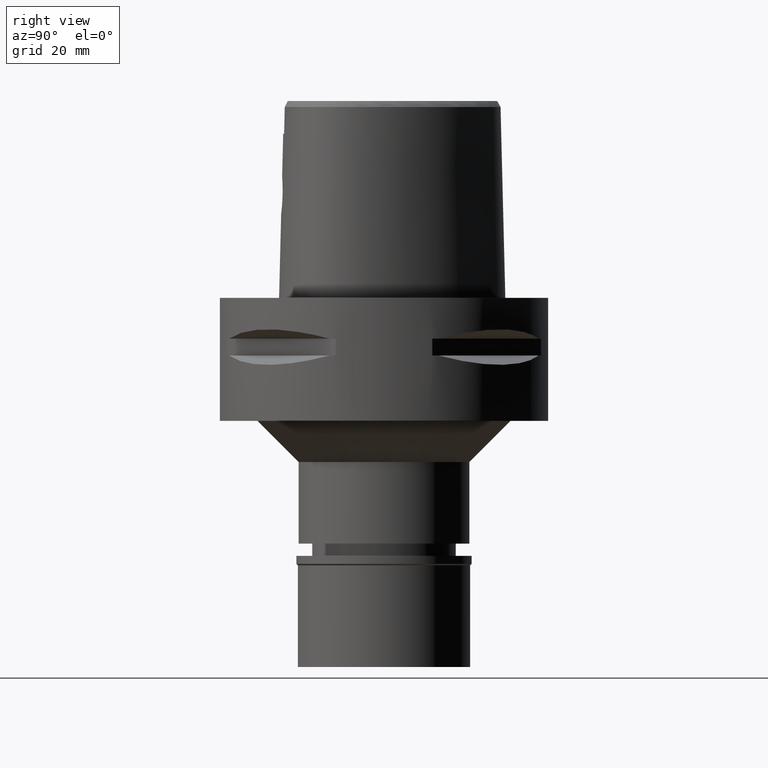
[diagram: clean part render]
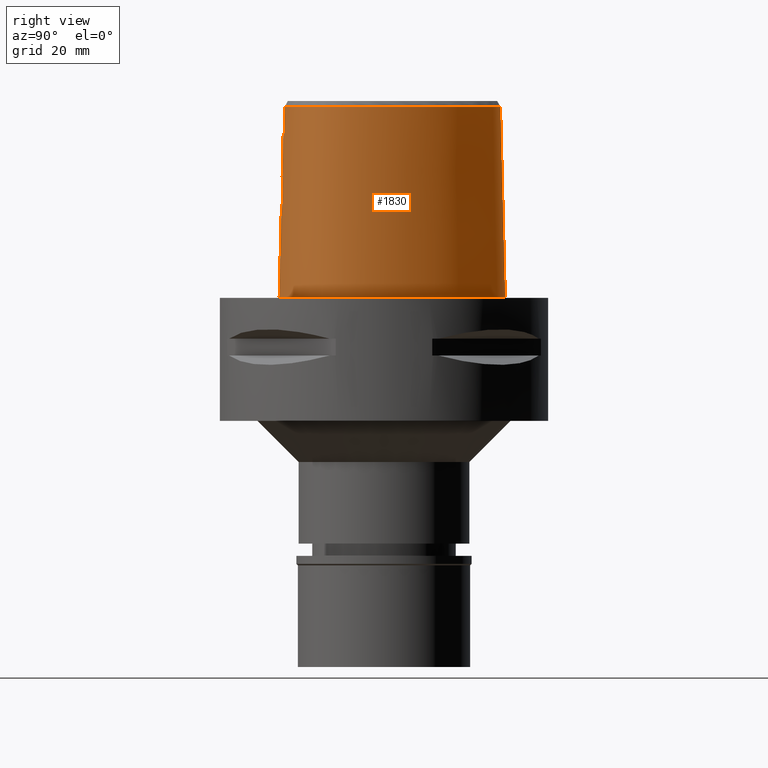
[diagram: same view with one face highlighted and labeled with its STEP entity id]
A machine part, right view. The second image highlights one B-rep face of the part: STEP entity #1830.
In plain terms, the highlighted face is a freeform B-spline surface patch.
Its self-contained STEP definition (entity closure, byte-faithful):
#8 = CARTESIAN_POINT ( 'NONE',  ( 26.53043812451588579, -3.252830914801576156, 46.52070254359986734 ) ) ;
#23 = DIRECTION ( 'NONE',  ( 1.191990173969029987E-12, 0.02499051293969065113, -0.9996876883622259902 ) ) ;
#48 = CARTESIAN_POINT ( 'NONE',  ( -0.5642169907412000196, -25.19264550061999941, 15.19677550932000010 ) ) ;
#56 = CARTESIAN_POINT ( 'NONE',  ( 4.354908547475000121E-11, 29.57499999998999840, 1.090979158864999866E-13 ) ) ;
#72 = CARTESIAN_POINT ( 'NONE',  ( 26.00056127858999844, -13.24168024687999967, 15.19677550932000010 ) ) ;
#103 = CARTESIAN_POINT ( 'NONE',  ( 17.98126102682999772, -20.40884504433000401, 47.45115618216000541 ) ) ;
#125 = B_SPLINE_CURVE_WITH_KNOTS ( 'NONE', 3,
 ( #2590, #4947, #1445, #3048 ),
 .UNSPECIFIED., .F., .F.,
 ( 4, 4 ),
 ( 0.0000000000000000000, 1.000000000000000000 ),
 .UNSPECIFIED. ) ;
#131 = CARTESIAN_POINT ( 'NONE',  ( 23.15870194799999737, -17.49879684224999821, 15.19677550932000010 ) ) ;
#156 = CARTESIAN_POINT ( 'NONE',  ( 20.94550167350000081, -18.97246371473000437, 31.32396584574000187 ) ) ;
#208 = CARTESIAN_POINT ( 'NONE',  ( 2.979937687032000238, 28.57037827401999763, 31.32396584574000187 ) ) ;
#213 = CARTESIAN_POINT ( 'NONE',  ( 3.180359783745103197, -24.92613363770007595, 21.74608895217514259 ) ) ;
#230 = CARTESIAN_POINT ( 'NONE',  ( -0.5537150798214999226, 28.37988128597999804, 47.45115618216000541 ) ) ;
#233 = CARTESIAN_POINT ( 'NONE',  ( 1.483723097888439924, -25.03485232889443068, 20.69751684277657233 ) ) ;
#240 = CARTESIAN_POINT ( 'NONE',  ( 2.760678900605143760, 28.19254769430317253, 46.52071606750154587 ) ) ;
#255 = CARTESIAN_POINT ( 'NONE',  ( 22.00846680665000221, 12.70659189653999910, 15.19677550932000010 ) ) ;
#261 = CARTESIAN_POINT ( 'NONE',  ( 4.337077477085154342, -24.71860659089776391, 26.37767366826650672 ) ) ;
#280 = CARTESIAN_POINT ( 'NONE',  ( 17.77103259307000016, 19.53703865006000129, -0.9304148271013000793 ) ) ;
#284 = CARTESIAN_POINT ( 'NONE',  ( 1.704163054239501873, -25.02540437729528477, 20.78117410888037497 ) ) ;
#302 = B_SPLINE_CURVE_WITH_KNOTS ( 'NONE', 3,
 ( #2944, #4510, #240, #2971, #2201, #2320, #795, #2681, #4780, #3976, #8, #1118, #4208, #746, #1689, #3873, #2038, #3623, #1277, #4237, #1894, #4264, #2271, #2299, #3850, #769 ),
 .UNSPECIFIED., .F., .F.,
 ( 4, 2, 2, 2, 2, 2, 2, 2, 2, 2, 2, 2, 4 ),
 ( 0.0000000000000000000, 0.06249999999999997224, 0.1249999999999999722, 0.2500000000000000000, 0.5000000000000000000, 0.5625000000000000000, 0.6249999999999998890, 0.6874999999999998890, 0.7187500000000000000, 0.7500000000000001110, 0.8125000000000001110, 0.8750000000000000000, 1.000000000000000000 ),
 .UNSPECIFIED. ) ;
#310 = CARTESIAN_POINT ( 'NONE',  ( 4.172398775497891066, -24.81348664747051203, 23.18477895935432187 ) ) ;
#337 = CARTESIAN_POINT ( 'NONE',  ( 2.653628212346459403, -24.78409939537365858, 28.69623435022848312 ) ) ;
#339 = CARTESIAN_POINT ( 'NONE',  ( 4.472216720976999405, -24.20009030094000124, 46.52069014668999358 ) ) ;
#346 = VERTEX_POINT ( 'NONE', #681 ) ;
#360 = CARTESIAN_POINT ( 'NONE',  ( 1.883305297005975154, -24.80958828430724594, 29.14211520707456060 ) ) ;
#364 = CARTESIAN_POINT ( 'NONE',  ( 1.372734075386999954E-14, -24.83629963747999980, 29.55000000000000071 ) ) ;
#371 = CARTESIAN_POINT ( 'NONE',  ( 22.33885463294038232, 12.89734373572265724, 1.137765652905239205E-06 ) ) ;
#381 = CARTESIAN_POINT ( 'NONE',  ( 3.373359712600709770, -24.75487047605681212, 28.05365220515482605 ) ) ;
#413 = CARTESIAN_POINT ( 'NONE',  ( 1.986969619755051930, -24.80670454267324132, 29.09445024140585190 ) ) ;
#439 = CARTESIAN_POINT ( 'NONE',  ( 3.329382130121248728, -24.75674668230317010, 28.10179055163160200 ) ) ;
#442 = CARTESIAN_POINT ( 'NONE',  ( 4.602925666818999950, -24.35121855888000297, 40.00000005214999987 ) ) ;
#465 = CARTESIAN_POINT ( 'NONE',  ( -0.5548491667767999624, -24.38637812865000143, 47.45115618216000541 ) ) ;
#490 = CARTESIAN_POINT ( 'NONE',  ( 11.64093420266000045, -23.76831829970000243, 15.19677550932000010 ) ) ;
#520 = CARTESIAN_POINT ( 'NONE',  ( 2.393561154781999711, -25.62160366746000051, -0.9304148271013000793 ) ) ;
#544 = CARTESIAN_POINT ( 'NONE',  ( 27.70696776775000103, -8.754869101938998810, -0.9304148271013000793 ) ) ;
#558 = CARTESIAN_POINT ( 'NONE',  ( 4.354908547475000121E-11, 29.57499999998999840, 1.090979158864999866E-13 ) ) ;
#570 = CARTESIAN_POINT ( 'NONE',  ( 2.334473150851999801, -24.41160952519999938, 47.45115618216000541 ) ) ;
#597 = CARTESIAN_POINT ( 'NONE',  ( 5.801139259362000367, 27.25218118271000023, 47.45115618216000541 ) ) ;
#602 = CARTESIAN_POINT ( 'NONE',  ( 3.205701519811125610, -24.92381821717547297, 21.77105828208809513 ) ) ;
#619 = CARTESIAN_POINT ( 'NONE',  ( -0.5886350937626000368, 29.18561913533000052, 15.19677550932000010 ) ) ;
#623 = CARTESIAN_POINT ( 'NONE',  ( 4.325577297008612376, -24.79069917425946912, 23.55238152012436004 ) ) ;
#631 = VERTEX_POINT ( 'NONE', #3331 ) ;
#641 = CARTESIAN_POINT ( 'NONE',  ( 2.892852006350000060, 28.17405693985000070, 47.45115618216000541 ) ) ;
#644 = CARTESIAN_POINT ( 'NONE',  ( 3.937353243876662301, -24.84519667286186007, 22.71482954515074582 ) ) ;
#669 = CARTESIAN_POINT ( 'NONE',  ( 24.48145197323999867, 6.531540392824999763, 31.32396584574000187 ) ) ;
#673 = CARTESIAN_POINT ( 'NONE',  ( 2.955264688608201684, -24.94567926532401358, 21.53931554468380583 ) ) ;
#681 = CARTESIAN_POINT ( 'NONE',  ( -1.451045074373000022E-08, -24.57504746727000011, 40.00000005214000254 ) ) ;
#695 = CARTESIAN_POINT ( 'NONE',  ( 3.100243586364318737, -24.93331626314396487, 21.66917441973966874 ) ) ;
#715 = CARTESIAN_POINT ( 'NONE',  ( 1.813541865601553615, -24.81148519056511503, 29.17313109452835107 ) ) ;
#721 = CARTESIAN_POINT ( 'NONE',  ( -4.851912750261540134E-09, -24.66214466420160178, 36.51666702990944913 ) ) ;
#746 = CARTESIAN_POINT ( 'NONE',  ( 26.04423705948806500, -10.88022456237800029, 46.52069972612036253 ) ) ;
#769 = CARTESIAN_POINT ( 'NONE',  ( 4.472216720976999405, -24.20009030094000124, 46.52069014668999358 ) ) ;
#795 = CARTESIAN_POINT ( 'NONE',  ( 13.63304938780060205, 22.11238814013741205, 46.52071155953431258 ) ) ;
#802 = CARTESIAN_POINT ( 'NONE',  ( 27.68378751008365768, -8.751933590160039245, 1.137765652905239205E-06 ) ) ;
#818 = CARTESIAN_POINT ( 'NONE',  ( 3.512978482356083010, -24.74890643940174328, 27.89278862330737851 ) ) ;
#844 = CARTESIAN_POINT ( 'NONE',  ( 21.19046230565000144, -19.29498355652999564, 15.19677550932000010 ) ) ;
#853 = CARTESIAN_POINT ( 'NONE',  ( 26.77222811516928047, 1.900468742689392920, 1.137765652905239205E-06 ) ) ;
#866 = CARTESIAN_POINT ( 'NONE',  ( -0.8462047034635000742, -25.18772786762999871, 15.19677550932000010 ) ) ;
#891 = CARTESIAN_POINT ( 'NONE',  ( 25.26074752890999875, -12.91722033719999807, 47.45115618216000541 ) ) ;
#892 = CARTESIAN_POINT ( 'NONE',  ( -1.451045074373000022E-08, -24.57504746727000011, 40.00000005214000254 ) ) ;
#908 = CARTESIAN_POINT ( 'NONE',  ( 4.472216720976999405, -24.20009030094000124, 46.52069014668999358 ) ) ;
#920 = CARTESIAN_POINT ( 'NONE',  ( 25.63065440375000037, -13.07945029204000065, 31.32396584574000187 ) ) ;
#944 = CARTESIAN_POINT ( 'NONE',  ( 27.47379237263000107, -5.347524340481999872, 15.19677550932000010 ) ) ;
#965 = CARTESIAN_POINT ( 'NONE',  ( 16.83227236161000206, 18.76477884674999785, 47.45115618216000541 ) ) ;
#966 = VERTEX_POINT ( 'NONE', #3367 ) ;
#971 = CARTESIAN_POINT ( 'NONE',  ( 3.695416430653771567, -24.87420445000563163, 22.34444809527614595 ) ) ;
#994 = CARTESIAN_POINT ( 'NONE',  ( 27.16099284806999847, -1.823107513524999890, 15.19677550932000010 ) ) ;
#999 = CARTESIAN_POINT ( 'NONE',  ( 4.208386412724382630, -24.72133790640165785, 26.72975093107536892 ) ) ;
#1021 = CARTESIAN_POINT ( 'NONE',  ( 4.220110851308563227, -24.72101730040709811, 26.70095761995017369 ) ) ;
#1039 = CARTESIAN_POINT ( 'NONE',  ( 17.14519243876999965, 19.02219878118999929, 31.32396584574000187 ) ) ;
#1040 = ORIENTED_EDGE ( 'NONE', *, *, #1243, .T. ) ;
#1043 = CARTESIAN_POINT ( 'NONE',  ( 4.402195190949106163, -24.71810392633513231, 26.16020714300568528 ) ) ;
#1071 = CARTESIAN_POINT ( 'NONE',  ( 4.141553595740764315, -24.81790787904087381, 23.11546483668099583 ) ) ;
#1118 = CARTESIAN_POINT ( 'NONE',  ( 26.66096789089047192, -6.450661550929248200, 46.52070141660809810 ) ) ;
#1141 = CARTESIAN_POINT ( 'NONE',  ( 1.153626000806933671, -24.82864766317861083, 29.44729853102899853 ) ) ;
#1156 = CARTESIAN_POINT ( 'NONE',  ( 9.304563391730813038, 26.79191403815369199, 1.137765652905239205E-06 ) ) ;
#1174 = CARTESIAN_POINT ( 'NONE',  ( -1.192047609672000055E-11, 28.41206021534999593, 46.52071719450999154 ) ) ;
#1193 = CARTESIAN_POINT ( 'NONE',  ( 2.284825071824842624, -24.79755434855802676, 28.93755567620546998 ) ) ;
#1224 = CARTESIAN_POINT ( 'NONE',  ( 14.86558271013000088, -21.85772751250000212, 47.45115618216000541 ) ) ;
#1235 = CARTESIAN_POINT ( 'NONE',  ( 27.85475986892180700, -5.337968750715377908, 1.137765652905239205E-06 ) ) ;
#1243 = EDGE_CURVE ( 'NONE', #966, #4379, #4207, .T. ) ;
#1253 = CARTESIAN_POINT ( 'NONE',  ( 21.43542293779999852, -19.61750339832000023, -0.9304148271013000793 ) ) ;
#1276 = CARTESIAN_POINT ( 'NONE',  ( 24.14246341867999845, -15.65707268299999733, 31.32396584574000187 ) ) ;
#1277 = CARTESIAN_POINT ( 'NONE',  ( 23.08984995679907826, -16.35075897049664917, 46.52069719038880891 ) ) ;
#1302 = CARTESIAN_POINT ( 'NONE',  ( -0.8321552545604999906, -24.38153452354000095, 47.45115618216000541 ) ) ;
#1328 = EDGE_LOOP ( 'NONE', ( #4266, #3261, #1953, #3746, #1758, #3859, #1040, #2323 ) ) ;
#1334 = CARTESIAN_POINT ( 'NONE',  ( 27.87808443977999673, -5.337383713848000255, -0.9304148271013000793 ) ) ;
#1356 = CARTESIAN_POINT ( 'NONE',  ( 26.01411798471999859, 1.699187884020000094, 31.32396584574000187 ) ) ;
#1360 = CARTESIAN_POINT ( 'NONE',  ( 1.157035249422594614, -25.04636291852922980, 20.59695966232704833 ) ) ;
#1385 = CARTESIAN_POINT ( 'NONE',  ( 4.230858595537497102, -24.72073100376794841, 26.67421065539090108 ) ) ;
#1412 = CARTESIAN_POINT ( 'NONE',  ( 4.437987378314520726, -24.71842636459932052, 26.01433587876356412 ) ) ;
#1429 = CARTESIAN_POINT ( 'NONE',  ( 17.45811251591999991, 19.27961871562000340, 15.19677550932000010 ) ) ;
#1434 = CARTESIAN_POINT ( 'NONE',  ( 1.717599865388684810, -25.02478947459729497, 20.78664336873092466 ) ) ;
#1445 = CARTESIAN_POINT ( 'NONE',  ( 1.541632268877130230, -24.57506718866674689, 40.00000010051920896 ) ) ;
#1452 = CARTESIAN_POINT ( 'NONE',  ( -0.8562942035482000724, 28.76413503436000241, 31.32396584574000187 ) ) ;
#1456 = CARTESIAN_POINT ( 'NONE',  ( 1.672780685870661532, -25.02682213713908155, 20.76857498625473042 ) ) ;
#1534 = CARTESIAN_POINT ( 'NONE',  ( -2.392065149245000541E-12, -25.06378435148999984, 20.44999999999999929 ) ) ;
#1543 = CARTESIAN_POINT ( 'NONE',  ( 25.20914247343074521, 6.827421864252392503, 1.137765652905239205E-06 ) ) ;
#1590 = EDGE_CURVE ( 'NONE', #966, #631, #4884, .T. ) ;
#1608 = CARTESIAN_POINT ( 'NONE',  ( 11.43012057372000001, -22.98864566028999690, 47.45115618216000541 ) ) ;
#1635 = CARTESIAN_POINT ( 'NONE',  ( 26.73375356917999568, -11.30662577662000068, 15.19677550932000010 ) ) ;
#1665 = FACE_OUTER_BOUND ( 'NONE', #1328, .T. ) ;
#1666 = CARTESIAN_POINT ( 'NONE',  ( -4.860711517212901788E-09, -24.74922215084347243, 33.03333351495476222 ) ) ;
#1685 = CARTESIAN_POINT ( 'NONE',  ( 4.602925666818999950, -24.35121855888000297, 40.00000005214999987 ) ) ;
#1688 = CARTESIAN_POINT ( 'NONE',  ( 22.86810860813000090, -17.21714015889000038, 31.32396584574000187 ) ) ;
#1689 = CARTESIAN_POINT ( 'NONE',  ( 25.61240997289937127, -12.23358473966325732, 46.52069916262447435 ) ) ;
#1716 = CARTESIAN_POINT ( 'NONE',  ( 26.90338648463999860, -8.653104818044999647, 31.32396584574000187 ) ) ;
#1743 = CARTESIAN_POINT ( 'NONE',  ( 24.85610452159999895, 6.683875413351000105, 15.19677550932000010 ) ) ;
#1758 = ORIENTED_EDGE ( 'NONE', *, *, #3108, .T. ) ;
#1763 = CARTESIAN_POINT ( 'NONE',  ( -0.5711750867921000507, 28.78275021065999795, 31.32396584574000187 ) ) ;
#1767 = CARTESIAN_POINT ( 'NONE',  ( 4.517116520650368727, -24.75057419275514192, 24.43553773670626938 ) ) ;
#1780 = CARTESIAN_POINT ( 'NONE',  ( -1.924424304313000141E-11, -25.57499999999999929, 1.155372094292999947E-13 ) ) ;
#1783 = CARTESIAN_POINT ( 'NONE',  ( 9.316733121847999399, 26.81182151388999912, -0.9304148271013000793 ) ) ;
#1788 = CARTESIAN_POINT ( 'NONE',  ( 1.732112786591197828, -25.02412118468006952, 20.79259001707690402 ) ) ;
#1810 = CARTESIAN_POINT ( 'NONE',  ( -1.192047609672000055E-11, 28.41206021534999593, 46.52071719450999154 ) ) ;
#1814 = CARTESIAN_POINT ( 'NONE',  ( 3.756465253609524435, -24.73852494831098170, 27.57169756947592987 ) ) ;
#1829 = CARTESIAN_POINT ( 'NONE',  ( 9.105791391102000532, 26.46675902308999895, 15.19677550932000010 ) ) ;
#1830 = ADVANCED_FACE ( 'NONE', ( #1665 ), #3656, .T. ) ;
#1835 = CARTESIAN_POINT ( 'NONE',  ( 3.156365463052468012, -24.92830912253881337, 21.72269515073469393 ) ) ;
#1859 = CARTESIAN_POINT ( 'NONE',  ( 4.186622009782690945, -24.81141158316100714, 23.21777758281323401 ) ) ;
#1887 = CARTESIAN_POINT ( 'NONE',  ( 2.410767390551869394, -24.79324877274663308, 28.86155595109452321 ) ) ;
#1894 = CARTESIAN_POINT ( 'NONE',  ( 20.45409312013607206, -18.82869992193957742, 46.52069578164907426 ) ) ;
#1935 = CARTESIAN_POINT ( 'NONE',  ( 2.087632527488794576, -24.80370565429772256, 29.04349576581762804 ) ) ;
#1953 = ORIENTED_EDGE ( 'NONE', *, *, #3704, .F. ) ;
#1964 = CARTESIAN_POINT ( 'NONE',  ( 0.5545157691314848147, -24.83629963747999270, 29.54999999999999361 ) ) ;
#1975 = CARTESIAN_POINT ( 'NONE',  ( 24.77458491197820933, -16.12173826436910673, 1.137765652905239205E-06 ) ) ;
#1988 = CARTESIAN_POINT ( 'NONE',  ( 3.458990831518582887, -24.75121472495279207, 27.95724070546314266 ) ) ;
#1989 = CARTESIAN_POINT ( 'NONE',  ( 4.560197061652469408, -24.30012317751191020, 42.17356341699667155 ) ) ;
#2011 = CARTESIAN_POINT ( 'NONE',  ( 25.30843702479999990, -14.61183292880999929, 15.19677550932000010 ) ) ;
#2037 = CARTESIAN_POINT ( 'NONE',  ( 6.639625057085000392, -24.86795306978000397, 15.19677550932000010 ) ) ;
#2038 = CARTESIAN_POINT ( 'NONE',  ( 24.33934953590093642, -14.68006085516936210, 46.52069803563264827 ) ) ;
#2069 = CARTESIAN_POINT ( 'NONE',  ( 23.44929528786000006, -17.78045352560999959, -0.9304148271013000793 ) ) ;
#2094 = CARTESIAN_POINT ( 'NONE',  ( 6.584202176462000011, -24.46732418463999892, 31.32396584574000187 ) ) ;
#2121 = CARTESIAN_POINT ( 'NONE',  ( -0.6060951007331000229, 29.58848805999999954, -0.9304148271013000793 ) ) ;
#2147 = CARTESIAN_POINT ( 'NONE',  ( 24.10679942488000194, 6.379205372299000310, 47.45115618216000541 ) ) ;
#2151 = CARTESIAN_POINT ( 'NONE',  ( 4.523121810469494797, -24.72136632330973072, 25.57645994462696493 ) ) ;
#2166 = CARTESIAN_POINT ( 'NONE',  ( -0.8299363127920000860, 28.36186478918000020, 47.45115618216000541 ) ) ;
#2169 = CARTESIAN_POINT ( 'NONE',  ( 4.412773899550453294, -24.77516587915330248, 23.85162301169598820 ) ) ;
#2188 = CARTESIAN_POINT ( 'NONE',  ( 0.7484115212476000201, 29.63215902794000201, -0.9304148271013000793 ) ) ;
#2193 = CARTESIAN_POINT ( 'NONE',  ( 1.011135947205145991, -25.05051087875798288, 20.56129276502817760 ) ) ;
#2201 = CARTESIAN_POINT ( 'NONE',  ( 6.913370730854225599, 26.74336904842993334, 46.52071437701381029 ) ) ;
#2216 = CARTESIAN_POINT ( 'NONE',  ( 0.7265635583735999825, 29.22802189345000201, 15.19677550932000010 ) ) ;
#2220 = CARTESIAN_POINT ( 'NONE',  ( 3.196341748949967254, -24.92467674393279964, 21.76178677583773435 ) ) ;
#2232 = EDGE_CURVE ( 'NONE', #3201, #2473, #3967, .T. ) ;
#2243 = CARTESIAN_POINT ( 'NONE',  ( 3.606429171763644970, -24.88406245827873420, 22.22480142265810699 ) ) ;
#2263 = CARTESIAN_POINT ( 'NONE',  ( 1.372734075386999954E-14, -24.83629963747999980, 29.55000000000000071 ) ) ;
#2271 = CARTESIAN_POINT ( 'NONE',  ( 16.39076485917413351, -21.20751266143594549, 46.52069409116134580 ) ) ;
#2291 = CARTESIAN_POINT ( 'NONE',  ( 2.560989721140063846, -24.78761092133459343, 28.76100236095895113 ) ) ;
#2298 = DIRECTION ( 'NONE',  ( -8.238100128408734440E-13, -0.02499051295403921166, -0.9996876883618673881 ) ) ;
#2299 = CARTESIAN_POINT ( 'NONE',  ( 11.70978320535224881, -23.05272019185247601, 46.52069240067368128 ) ) ;
#2320 = CARTESIAN_POINT ( 'NONE',  ( 10.99875819582850589, 24.38035098656035871, 46.52071268652614577 ) ) ;
#2323 = ORIENTED_EDGE ( 'NONE', *, *, #2860, .T. ) ;
#2350 = CARTESIAN_POINT ( 'NONE',  ( 27.53737509041933507, -1.765625004304363532, 1.137765652905239205E-06 ) ) ;
#2395 = CARTESIAN_POINT ( 'NONE',  ( 24.79336082156000032, -16.13554022971000279, -0.9304148271013000793 ) ) ;
#2417 = CARTESIAN_POINT ( 'NONE',  ( -0.5595330787589999355, -24.78951181462999998, 31.32396584574000187 ) ) ;
#2429 = B_SPLINE_CURVE_WITH_KNOTS ( 'NONE', 3,
 ( #2764, #3544, #2739, #4690, #5043, #4659, #3094, #4349, #1975, #4295, #4322, #3496, #802, #1235, #2350, #853, #1543, #371, #2688, #3447, #1156, #2790, #5020, #3831, #56 ),
 .UNSPECIFIED., .F., .F.,
 ( 4, 1, 1, 1, 1, 1, 1, 1, 1, 1, 1, 1, 1, 1, 1, 1, 1, 1, 1, 1, 1, 1, 4 ),
 ( 0.0000000000000000000, 0.08333333333348000305, 0.1250000000001000033, 0.1666666666668000230, 0.2083333333334000115, 0.2500000000000000000, 0.2916666666666999919, 0.3125000000000000000, 0.3333333333333000081, 0.3541666666666999919, 0.3750000000000000000, 0.4166666666666000163, 0.4583333333332000326, 0.4999999999998999689, 0.5416666666666000163, 0.5833333333331000015, 0.6666666666664999852, 0.7499999999997000177, 0.8333333333329999704, 0.8749999999995999866, 0.9166666666663000340, 0.9583333333329000503, 1.000000000000000000 ),
 .UNSPECIFIED. ) ;
#2451 = CARTESIAN_POINT ( 'NONE',  ( 6.528779295839000518, -24.06669529950000097, 47.45115618216000541 ) ) ;
#2473 = VERTEX_POINT ( 'NONE', #558 ) ;
#2479 = CARTESIAN_POINT ( 'NONE',  ( 2.373865153471999889, -25.21827228671000043, 15.19677550932000010 ) ) ;
#2503 = CARTESIAN_POINT ( 'NONE',  ( 27.06950030547999830, -5.357664967116000376, 31.32396584574000187 ) ) ;
#2530 = CARTESIAN_POINT ( 'NONE',  ( 5.957940564213999757, 27.62557819291999905, 31.32396584574000187 ) ) ;
#2535 = CARTESIAN_POINT ( 'NONE',  ( 4.549574022937135531, -24.73494683104329894, 24.92875559373501204 ) ) ;
#2556 = CARTESIAN_POINT ( 'NONE',  ( 8.894849660355999887, 26.12169653228999877, 31.32396584574000187 ) ) ;
#2559 = CARTESIAN_POINT ( 'NONE',  ( 4.115420520909673918, -24.72394829500695224, 26.95489229166447842 ) ) ;
#2575 = CARTESIAN_POINT ( 'NONE',  ( 22.35908248529000275, 12.90902243490999979, -0.9304148271013000793 ) ) ;
#2580 = CARTESIAN_POINT ( 'NONE',  ( 3.996558060055916517, -24.72854169055306173, 27.19514510552228614 ) ) ;
#2590 = CARTESIAN_POINT ( 'NONE',  ( 4.602925666818999950, -24.35121855888000297, 40.00000005214999987 ) ) ;
#2599 = CARTESIAN_POINT ( 'NONE',  ( 26.76156676505999954, -1.884109364611999959, 31.32396584574000187 ) ) ;
#2605 = CARTESIAN_POINT ( 'NONE',  ( 4.550159243768825412, -24.72595648767380183, 25.28426205013804307 ) ) ;
#2628 = CARTESIAN_POINT ( 'NONE',  ( 0.7047155954996000560, 28.82388475895000113, 31.32396584574000187 ) ) ;
#2629 = EDGE_CURVE ( 'NONE', #4148, #346, #125, .T. ) ;
#2632 = CARTESIAN_POINT ( 'NONE',  ( 0.2837429639709331819, -25.06378435148999628, 20.45000000000000284 ) ) ;
#2681 = CARTESIAN_POINT ( 'NONE',  ( 20.76159157986810655, 13.99289103072048945, 46.52070817855889118 ) ) ;
#2688 = CARTESIAN_POINT ( 'NONE',  ( 17.75297948961959449, 19.52218748183531005, 1.137765652905239205E-06 ) ) ;
#2739 = CARTESIAN_POINT ( 'NONE',  ( 6.691850459915713145, -25.24546872174392220, 1.137765652905238994E-06 ) ) ;
#2751 = CARTESIAN_POINT ( 'NONE',  ( 2.592678685480171108, -24.78641481269939106, 28.73923899945254234 ) ) ;
#2764 = CARTESIAN_POINT ( 'NONE',  ( -1.924424304313000141E-11, -25.57499999999999929, 1.155372094292999947E-13 ) ) ;
#2779 = CARTESIAN_POINT ( 'NONE',  ( -0.8532294279149998939, -25.59082453967999982, -0.9304148271013000793 ) ) ;
#2790 = CARTESIAN_POINT ( 'NONE',  ( 6.262496933729663873, 28.35083005178260152, 1.137765652905239205E-06 ) ) ;
#2807 = CARTESIAN_POINT ( 'NONE',  ( 27.30517712620000026, -8.703986959991999228, 15.19677550932000010 ) ) ;
#2831 = CARTESIAN_POINT ( 'NONE',  ( 24.95856524036999957, -14.40983435964999870, 31.32396584574000187 ) ) ;
#2857 = CARTESIAN_POINT ( 'NONE',  ( 15.15935276949999988, -22.61055591086000049, 15.19677550932000010 ) ) ;
#2860 = EDGE_CURVE ( 'NONE', #4379, #2473, #2429, .T. ) ;
#2909 = CARTESIAN_POINT ( 'NONE',  ( 13.23332856871000018, 24.06149250566999953, -0.9304148271013000793 ) ) ;
#2914 = CARTESIAN_POINT ( 'NONE',  ( 1.374979210368050708, -25.03889659011748492, 20.66206490747602231 ) ) ;
#2940 = CARTESIAN_POINT ( 'NONE',  ( 4.212885333431655610, -24.72121330192673838, 26.71877560767986992 ) ) ;
#2944 = CARTESIAN_POINT ( 'NONE',  ( -1.192047609672000055E-11, 28.41206021534999593, 46.52071719450999154 ) ) ;
#2967 = CARTESIAN_POINT ( 'NONE',  ( 1.952635857166424627, -25.01389984458331028, 20.88358337727334657 ) ) ;
#2971 = CARTESIAN_POINT ( 'NONE',  ( 5.530043876418822002, 27.35846726636649962, 46.52071494050972689 ) ) ;
#2983 = CARTESIAN_POINT ( 'NONE',  ( 12.70057944244999959, 23.45048147562999930, 31.32396584574000187 ) ) ;
#2987 = CARTESIAN_POINT ( 'NONE',  ( 4.537017841949596786, -24.74324082396831770, 24.64916680774929603 ) ) ;
#3007 = CARTESIAN_POINT ( 'NONE',  ( 8.683907929609999243, 25.77663404149999948, 47.45115618216000541 ) ) ;
#3012 = CARTESIAN_POINT ( 'NONE',  ( 3.739368471908986358, -24.86915408846757813, 22.40675187303118676 ) ) ;
#3048 = CARTESIAN_POINT ( 'NONE',  ( -1.451045074373000022E-08, -24.57504746727000011, 40.00000005214000254 ) ) ;
#3079 = CARTESIAN_POINT ( 'NONE',  ( 3.005270379491385313, -24.77034733848117298, 28.41951852237777487 ) ) ;
#3094 = CARTESIAN_POINT ( 'NONE',  ( 21.42129057635563782, -19.59889646161694188, 1.137765652905239205E-06 ) ) ;
#3102 = EDGE_CURVE ( 'NONE', #3201, #4719, #302, .T. ) ;
#3108 = EDGE_CURVE ( 'NONE', #346, #631, #4192, .T. ) ;
#3133 = CARTESIAN_POINT ( 'NONE',  ( 2.744259390203955817, -24.78063453097692914, 28.63060330404570664 ) ) ;
#3153 = CARTESIAN_POINT ( 'NONE',  ( 11.74634101712999978, -24.15815461940999853, -0.9304148271013000793 ) ) ;
#3185 = CARTESIAN_POINT ( 'NONE',  ( 26.34453505009999930, -11.19579289544000034, 31.32396584574000187 ) ) ;
#3201 = VERTEX_POINT ( 'NONE', #1174 ) ;
#3212 = CARTESIAN_POINT ( 'NONE',  ( 20.70054104135000017, -18.64994387293999978, 47.45115618216000541 ) ) ;
#3236 = CARTESIAN_POINT ( 'NONE',  ( 22.57751526826999822, -16.93548347553999633, 47.45115618216000541 ) ) ;
#3261 = ORIENTED_EDGE ( 'NONE', *, *, #3102, .T. ) ;
#3265 = CARTESIAN_POINT ( 'NONE',  ( 26.50159584309000138, -8.602222676099000154, 47.45115618216000541 ) ) ;
#3291 = CARTESIAN_POINT ( 'NONE',  ( 27.56041893108000096, -1.762105662438000042, -0.9304148271013000793 ) ) ;
#3311 = CARTESIAN_POINT ( 'NONE',  ( 6.271543173918000313, 28.37237221332999937, -0.9304148271013000793 ) ) ;
#3315 = CARTESIAN_POINT ( 'NONE',  ( 3.051956606900631197, -24.93748982820225635, 21.62510482542849388 ) ) ;
#3331 = CARTESIAN_POINT ( 'NONE',  ( 1.372734075386999954E-14, -24.83629963747999980, 29.55000000000000071 ) ) ;
#3336 = CARTESIAN_POINT ( 'NONE',  ( 21.65785112801000167, 12.50416135816999841, 31.32396584574000187 ) ) ;
#3340 = CARTESIAN_POINT ( 'NONE',  ( 3.861082105068228909, -24.85463631592320866, 22.58840412903431982 ) ) ;
#3360 = CARTESIAN_POINT ( 'NONE',  ( 0.6828676326254998763, 28.41974762445000025, 47.45115618216000541 ) ) ;
#3363 = CARTESIAN_POINT ( 'NONE',  ( 2.697261088284306219, -24.96604596303029666, 21.33198344650122280 ) ) ;
#3367 = CARTESIAN_POINT ( 'NONE',  ( -2.392065149245000541E-12, -25.06378435148999984, 20.44999999999999929 ) ) ;
#3381 = CARTESIAN_POINT ( 'NONE',  ( 25.62380384397000199, 1.595558131238000055, 47.45115618216000541 ) ) ;
#3385 = CARTESIAN_POINT ( 'NONE',  ( 3.560464869665108445, -24.88898092548870267, 22.16607190872576894 ) ) ;
#3447 = CARTESIAN_POINT ( 'NONE',  ( 13.21796078665989960, 24.04386716594249762, 1.137765652905239205E-06 ) ) ;
#3458 = CARTESIAN_POINT ( 'NONE',  ( 3.275992991613311922, -24.75902016830570318, 28.15772619067946891 ) ) ;
#3496 = CARTESIAN_POINT ( 'NONE',  ( 27.10051714624793817, -11.41106444530676356, 1.137765652905239205E-06 ) ) ;
#3512 = CARTESIAN_POINT ( 'NONE',  ( 3.252660951009046286, -24.76001264346004760, 28.18163816682239897 ) ) ;
#3534 = CARTESIAN_POINT ( 'NONE',  ( -0.5689009027233999927, -25.59577918660000151, -0.9304148271013000793 ) ) ;
#3544 = CARTESIAN_POINT ( 'NONE',  ( 2.676740183967310394, -25.57499997155843730, 1.137765652905239205E-06 ) ) ;
#3560 = CARTESIAN_POINT ( 'NONE',  ( 24.60869345592999835, -14.20783579047999901, 47.45115618216000541 ) ) ;
#3594 = CARTESIAN_POINT ( 'NONE',  ( 15.30623779918999894, -22.98697011004999879, -0.9304148271013000793 ) ) ;
#3622 = CARTESIAN_POINT ( 'NONE',  ( 18.17462471394000190, -20.76404252109000126, 31.32396584574000187 ) ) ;
#3623 = CARTESIAN_POINT ( 'NONE',  ( 23.53784508589321689, -15.81022840325489121, 46.52069747213674589 ) ) ;
#3648 = CARTESIAN_POINT ( 'NONE',  ( 18.56135208815999960, -21.47443747462000019, -0.9304148271013000793 ) ) ;
#3656 = B_SPLINE_SURFACE_WITH_KNOTS ( 'NONE', 3, 3, ( 
 ( #2779, #866, #4832, #1302 ),
 ( #3534, #48, #2417, #465 ),
 ( #520, #2479, #4445, #570 ),
 ( #4056, #2037, #2094, #2451 ),
 ( #3153, #490, #3951, #1608 ),
 ( #3594, #2857, #4725, #1224 ),
 ( #3648, #4340, #3622, #103 ),
 ( #1253, #844, #156, #3212 ),
 ( #2069, #131, #1688, #3236 ),
 ( #2395, #4779, #1276, #4418 ),
 ( #3975, #2011, #2831, #3560 ),
 ( #4386, #72, #920, #891 ),
 ( #4032, #1635, #3185, #4005 ),
 ( #544, #2807, #1716, #3265 ),
 ( #1334, #944, #2503, #4363 ),
 ( #3291, #994, #2599, #4857 ),
 ( #4085, #4498, #1356, #3381 ),
 ( #4155, #1743, #669, #2147 ),
 ( #2575, #255, #3336, #3771 ),
 ( #280, #1429, #1039, #965 ),
 ( #2909, #4469, #2983, #4542 ),
 ( #1783, #1829, #2556, #3007 ),
 ( #3311, #3700, #2530, #597 ),
 ( #4523, #4109, #208, #641 ),
 ( #2188, #2216, #2628, #3360 ),
 ( #2121, #619, #1763, #230 ),
 ( #4954, #4878, #1452, #2166 ) ),
 .UNSPECIFIED., .F., .F., .F.,
 ( 4, 1, 1, 1, 1, 1, 1, 1, 1, 1, 1, 1, 1, 1, 1, 1, 1, 1, 1, 1, 1, 1, 1, 1, 4 ),
 ( 4, 4 ),
 ( -0.008851417483051000554, 0.0000000000000000000, 0.08333333333348000305, 0.1250000000001000033, 0.1666666666668000230, 0.2083333333334000115, 0.2500000000000000000, 0.2916666666666999919, 0.3125000000000000000, 0.3333333333333000081, 0.3541666666666999919, 0.3750000000000000000, 0.4166666666666000163, 0.4583333333332000326, 0.4999999999998999689, 0.5416666666666000163, 0.5833333333331000015, 0.6666666666664999852, 0.7499999999997000177, 0.8333333333329999704, 0.8749999999995999866, 0.9166666666663000340, 0.9583333333329000503, 1.000000000000000000, 1.012009199036000062 ),
 ( -2.018435460437999942E-09, 1.000000102940000080 ),
 .UNSPECIFIED. ) ;
#3700 = CARTESIAN_POINT ( 'NONE',  ( 6.114741869066000035, 27.99897520312000410, 15.19677550932000010 ) ) ;
#3704 = EDGE_CURVE ( 'NONE', #4148, #4719, #4981, .T. ) ;
#3706 = CARTESIAN_POINT ( 'NONE',  ( 3.317903692991932996, -24.91347842919925526, 21.88291014845654558 ) ) ;
#3726 = CARTESIAN_POINT ( 'NONE',  ( -2.392065149245000541E-12, -25.06378435148999984, 20.44999999999999929 ) ) ;
#3746 = ORIENTED_EDGE ( 'NONE', *, *, #2629, .T. ) ;
#3750 = CARTESIAN_POINT ( 'NONE',  ( 4.544345534604902426, -24.73984392723382086, 24.75509518057813452 ) ) ;
#3771 = CARTESIAN_POINT ( 'NONE',  ( 21.30723544935999669, 12.30173081981000038, 47.45115618216000541 ) ) ;
#3775 = CARTESIAN_POINT ( 'NONE',  ( 3.418326490945088114, -24.90370471633881877, 21.99337763265262424 ) ) ;
#3796 = CARTESIAN_POINT ( 'NONE',  ( 1.726554843533688155, -25.02437791916835508, 20.79030502623852783 ) ) ;
#3831 = CARTESIAN_POINT ( 'NONE',  ( 1.049694956043448535, 29.57499997155296967, 1.137765652905239205E-06 ) ) ;
#3850 = CARTESIAN_POINT ( 'NONE',  ( 8.153873202539774212, -23.84765792154576403, 46.52069127368183388 ) ) ;
#3859 = ORIENTED_EDGE ( 'NONE', *, *, #1590, .F. ) ;
#3869 = CARTESIAN_POINT ( 'NONE',  ( 3.237005511789829537, -24.76067832112078548, 28.19756469886729278 ) ) ;
#3873 = CARTESIAN_POINT ( 'NONE',  ( 24.69258566271353317, -14.08975149522519565, 46.52069831738060657 ) ) ;
#3895 = CARTESIAN_POINT ( 'NONE',  ( 3.666127388007985211, -24.74236822830340898, 27.69981209002247269 ) ) ;
#3951 = CARTESIAN_POINT ( 'NONE',  ( 11.53552738819000112, -23.37848198000000011, 31.32396584574000187 ) ) ;
#3967 = LINE ( 'NONE', #1810, #4060 ) ;
#3975 = CARTESIAN_POINT ( 'NONE',  ( 25.65830880924000112, -14.81383149798000076, -0.9304148271013000793 ) ) ;
#3976 = CARTESIAN_POINT ( 'NONE',  ( 26.30769162470658529, -1.593520748820500987, 46.52070310709580525 ) ) ;
#4005 = CARTESIAN_POINT ( 'NONE',  ( 25.95531653101999936, -11.08496001425000088, 47.45115618216000541 ) ) ;
#4032 = CARTESIAN_POINT ( 'NONE',  ( 27.12297208826999650, -11.41745865781000013, -0.9304148271013000793 ) ) ;
#4056 = CARTESIAN_POINT ( 'NONE',  ( 6.695047937707999886, -25.26858195491999837, -0.9304148271013000793 ) ) ;
#4060 = VECTOR ( 'NONE', #23, 1000.000000000000000 ) ;
#4070 = VECTOR ( 'NONE', #2298, 1000.000000000000000 ) ;
#4085 = CARTESIAN_POINT ( 'NONE',  ( 26.79474626620999800, 1.906447389584000174, -0.9304148271013000793 ) ) ;
#4089 = CARTESIAN_POINT ( 'NONE',  ( 4.549979298456324983, -24.73407938846014176, 24.96161245961963715 ) ) ;
#4109 = CARTESIAN_POINT ( 'NONE',  ( 3.067023367714000415, 28.96669960819000167, 15.19677550932000010 ) ) ;
#4112 = CARTESIAN_POINT ( 'NONE',  ( 4.301663164392376615, -24.71910450366881307, 26.48607042045374982 ) ) ;
#4133 = CARTESIAN_POINT ( 'NONE',  ( 2.890648186359234373, -24.95092863274541628, 21.48525694161344290 ) ) ;
#4148 = VERTEX_POINT ( 'NONE', #1685 ) ;
#4155 = CARTESIAN_POINT ( 'NONE',  ( 25.23075706995999923, 6.836210433875999470, -0.9304148271013000793 ) ) ;
#4160 = CARTESIAN_POINT ( 'NONE',  ( 0.5741109003791866616, -25.06046598330699382, 20.47661985235020055 ) ) ;
#4184 = CARTESIAN_POINT ( 'NONE',  ( 2.568983978599080675, -24.97528315391444309, 21.24168007029576444 ) ) ;
#4192 = B_SPLINE_CURVE_WITH_KNOTS ( 'NONE', 3,
 ( #892, #721, #1666, #364 ),
 .UNSPECIFIED., .F., .F.,
 ( 4, 4 ),
 ( 0.0000000000000000000, 1.000000000000000000 ),
 .UNSPECIFIED. ) ;
#4204 = CARTESIAN_POINT ( 'NONE',  ( 3.115833847008503632, -24.76582665838807529, 28.31908668410238405 ) ) ;
#4207 = LINE ( 'NONE', #1534, #4070 ) ;
#4208 = CARTESIAN_POINT ( 'NONE',  ( 26.56868348264638513, -7.988862950301080623, 46.52070085311217440 ) ) ;
#4237 = CARTESIAN_POINT ( 'NONE',  ( 21.61408639850539615, -17.89738970854790878, 46.52069634514499796 ) ) ;
#4264 = CARTESIAN_POINT ( 'NONE',  ( 17.84219066873961168, -20.48406917474970257, 46.52069465465721976 ) ) ;
#4266 = ORIENTED_EDGE ( 'NONE', *, *, #2232, .F. ) ;
#4295 = CARTESIAN_POINT ( 'NONE',  ( 25.63812387391595138, -14.80217772012314725, 1.137765652905239205E-06 ) ) ;
#4310 = CARTESIAN_POINT ( 'NONE',  ( 1.779627886571164774, -24.81238721778816014, 29.18772178098349812 ) ) ;
#4322 = CARTESIAN_POINT ( 'NONE',  ( 26.34912734610190910, -13.39455076980321380, 1.137765652905239205E-06 ) ) ;
#4340 = CARTESIAN_POINT ( 'NONE',  ( 18.36798840104999897, -21.11923999785999939, 15.19677550932000010 ) ) ;
#4349 = CARTESIAN_POINT ( 'NONE',  ( 23.43253026698222641, -17.76420408169925125, 1.137765652905239205E-06 ) ) ;
#4363 = CARTESIAN_POINT ( 'NONE',  ( 26.66520823833999998, -5.367805593749999993, 47.45115618216000541 ) ) ;
#4379 = VERTEX_POINT ( 'NONE', #1780 ) ;
#4386 = CARTESIAN_POINT ( 'NONE',  ( 26.37046815343999739, -13.40391020172000047, -0.9304148271013000793 ) ) ;
#4418 = CARTESIAN_POINT ( 'NONE',  ( 23.81701471722999841, -15.41783890964000037, 47.45115618216000541 ) ) ;
#4445 = CARTESIAN_POINT ( 'NONE',  ( 2.354169152162000067, -24.81494090594999946, 31.32396584574000187 ) ) ;
#4469 = CARTESIAN_POINT ( 'NONE',  ( 12.96695400557999989, 23.75598699065000119, 15.19677550932000010 ) ) ;
#4474 = CARTESIAN_POINT ( 'NONE',  ( 4.496850936027446011, -24.75618253903683197, 24.29074513882240183 ) ) ;
#4498 = CARTESIAN_POINT ( 'NONE',  ( 26.40443212547000229, 1.802817636801999912, 15.19677550932000010 ) ) ;
#4502 = CARTESIAN_POINT ( 'NONE',  ( 1.609901483200825378, -25.02958960435420721, 20.74402583925022370 ) ) ;
#4510 = CARTESIAN_POINT ( 'NONE',  ( 1.375467128704389808, 28.41206022877625870, 46.52071663099744825 ) ) ;
#4523 = CARTESIAN_POINT ( 'NONE',  ( 3.154109048395999704, 29.36302094236000215, -0.9304148271013000793 ) ) ;
#4526 = CARTESIAN_POINT ( 'NONE',  ( 2.192364263587748052, -25.00047163864959643, 21.00192190659227620 ) ) ;
#4542 = CARTESIAN_POINT ( 'NONE',  ( 12.43420487931999929, 23.14497596060000006, 47.45115618216000541 ) ) ;
#4548 = CARTESIAN_POINT ( 'NONE',  ( 4.547962263618207324, -24.73685171198772181, 24.85950514488713736 ) ) ;
#4575 = CARTESIAN_POINT ( 'NONE',  ( 4.043275511985531701, -24.83139551622221575, 22.91194186434534075 ) ) ;
#4598 = CARTESIAN_POINT ( 'NONE',  ( 2.832428424603999240, -24.77719445135584309, 28.56165880794027601 ) ) ;
#4647 = CARTESIAN_POINT ( 'NONE',  ( 4.516620281278921567, -24.24973700794193476, 44.34712678184333612 ) ) ;
#4659 = CARTESIAN_POINT ( 'NONE',  ( 18.55019647718501474, -21.45394528744020235, 1.137765652905239205E-06 ) ) ;
#4678 = CARTESIAN_POINT ( 'NONE',  ( 3.227783996390869437, -24.76107025147647178, 28.20686722736789420 ) ) ;
#4690 = CARTESIAN_POINT ( 'NONE',  ( 11.74025984732032768, -24.13566403500089663, 1.137765652905239205E-06 ) ) ;
#4719 = VERTEX_POINT ( 'NONE', #908 ) ;
#4725 = CARTESIAN_POINT ( 'NONE',  ( 15.01246773981999993, -22.23414171168000308, 31.32396584574000187 ) ) ;
#4779 = CARTESIAN_POINT ( 'NONE',  ( 24.46791212011999761, -15.89630645635000228, 15.19677550932000010 ) ) ;
#4780 = CARTESIAN_POINT ( 'NONE',  ( 24.48700992949119382, 6.834036305491383523, 46.52070592457530296 ) ) ;
#4832 = CARTESIAN_POINT ( 'NONE',  ( -0.8391799790119999214, -24.78463119557999761, 31.32396584574000187 ) ) ;
#4857 = CARTESIAN_POINT ( 'NONE',  ( 26.36214068205000061, -1.945111215699000029, 47.45115618216000541 ) ) ;
#4878 = CARTESIAN_POINT ( 'NONE',  ( -0.8826520943043999479, 29.16640527953000017, 15.19677550932000010 ) ) ;
#4882 = CARTESIAN_POINT ( 'NONE',  ( 4.255303340875727258, -24.72011691775874098, 26.61166571686907645 ) ) ;
#4884 = B_SPLINE_CURVE_WITH_KNOTS ( 'NONE', 3,
 ( #3726, #2632, #4160, #2193, #1360, #2914, #233, #4502, #1456, #284, #1434, #3796, #1788, #2967, #4526, #4184, #3363, #4133, #673, #3315, #695, #1835, #213, #2220, #602, #3706, #3775, #3385, #2243, #971, #3012, #3340, #644, #4575, #4910, #1071, #310, #1859, #623, #2169, #4474, #1767, #2987, #3750, #4548, #2535, #4089, #2605, #2151, #1412, #1043, #261, #4112, #4882, #1385, #1021, #2940, #999, #2559, #2580, #1814, #3895, #818, #1988, #381, #439, #3458, #3512, #3869, #4678, #4204, #3079, #4598, #3133, #337, #2751, #2291, #1887, #1193, #1935, #413, #360, #715, #4310, #1141, #1964, #2263 ),
 .UNSPECIFIED., .F., .F.,
 ( 4, 2, 2, 1, 1, 1, 1, 2, 2, 2, 2, 2, 1, 1, 2, 2, 2, 2, 2, 2, 1, 2, 2, 2, 2, 1, 2, 2, 2, 2, 1, 1, 1, 2, 2, 2, 2, 2, 1, 1, 2, 2, 2, 1, 2, 2, 2, 1, 2, 2, 4 ),
 ( 0.0000000000000000000, 0.06250000000000227596, 0.09375000000000341394, 0.1093750000000039829, 0.1171875000000042744, 0.1210937500000042882, 0.1230468750000042605, 0.1240234375000042327, 0.1250000000000042188, 0.1875000000000046352, 0.2187500000000050515, 0.2343750000000053013, 0.2421875000000052736, 0.2460937500000049960, 0.2480468750000050515, 0.2500000000000051070, 0.2812500000000022760, 0.2968750000000012212, 0.3125000000000001110, 0.3437499999999978906, 0.3593749999999971689, 0.3671874999999970579, 0.3749999999999969469, 0.4374999999999924505, 0.4687499999999902300, 0.4843749999999887867, 0.4921874999999880096, 0.4999999999999872324, 0.5624999999999773515, 0.5937499999999725775, 0.6093749999999701350, 0.6171874999999692468, 0.6210937499999692468, 0.6230468749999694689, 0.6249999999999698019, 0.6874999999999810152, 0.7187499999999867883, 0.7343749999999893419, 0.7421874999999903411, 0.7460937499999911182, 0.7480468749999913403, 0.7499999999999916733, 0.7812499999999930056, 0.7968749999999934497, 0.8046874999999936717, 0.8124999999999937828, 0.8437499999999946709, 0.8593749999999951150, 0.8671874999999953371, 0.8749999999999956701, 1.000000000000000000 ),
 .UNSPECIFIED. ) ;
#4910 = CARTESIAN_POINT ( 'NONE',  ( 4.094115463356373219, -24.82458451489047491, 23.01236396665021644 ) ) ;
#4947 = CARTESIAN_POINT ( 'NONE',  ( 3.083106517893321019, -24.50056604487898326, 40.00000010051920896 ) ) ;
#4954 = CARTESIAN_POINT ( 'NONE',  ( -0.9090099850605999343, 29.56867552470999883, -0.9304148271013000793 ) ) ;
#4981 = B_SPLINE_CURVE_WITH_KNOTS ( 'NONE', 3,
 ( #442, #1989, #4647, #339 ),
 .UNSPECIFIED., .F., .F.,
 ( 4, 4 ),
 ( 0.0000000000000000000, 1.000000000000000000 ),
 .UNSPECIFIED. ) ;
#5020 = CARTESIAN_POINT ( 'NONE',  ( 3.149084868366645917, 29.34015622204375262, 1.137765652905239205E-06 ) ) ;
#5043 = CARTESIAN_POINT ( 'NONE',  ( 15.29776365249906966, -22.96525387969474252, 1.137765652905239205E-06 ) ) ;